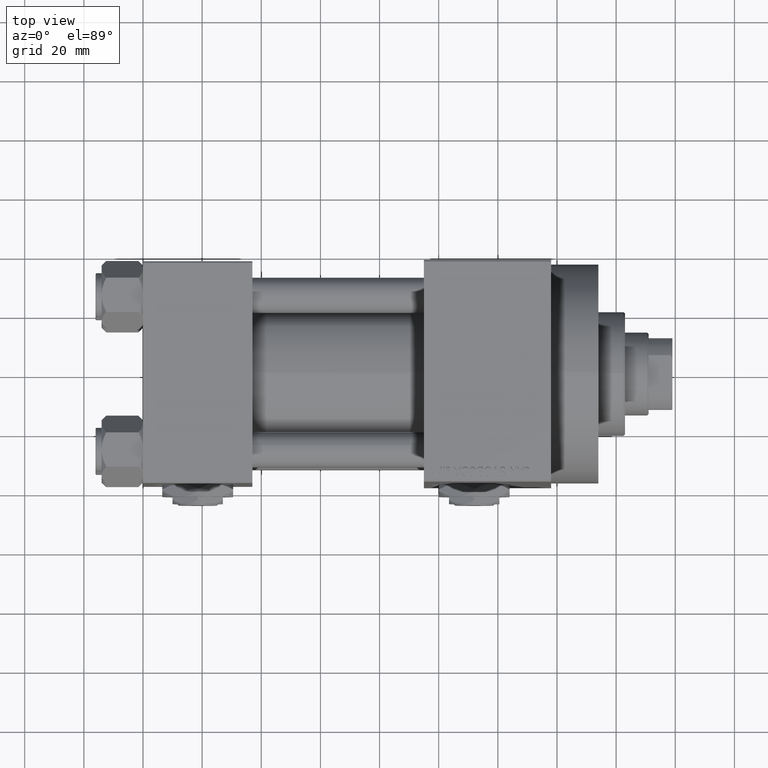
[diagram: clean part render]
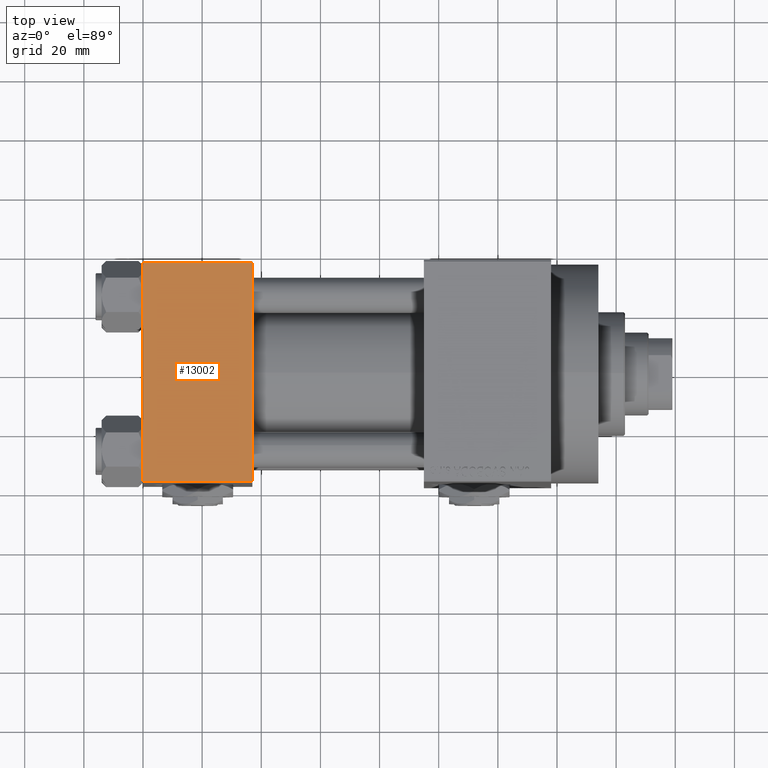
[diagram: same view with one face highlighted and labeled with its STEP entity id]
A machine part, top view. The second image highlights one B-rep face of the part: STEP entity #13002.
In plain terms, the highlighted planar face has unit normal (0, 0, -1).
Its self-contained STEP definition (entity closure, byte-faithful):
#966 = EDGE_CURVE ( 'NONE', #12385, #4499, #17951, .T. ) ;
#4499 = VERTEX_POINT ( 'NONE', #6644 ) ;
#4661 = ORIENTED_EDGE ( 'NONE', *, *, #966, .T. ) ;
#6114 = VERTEX_POINT ( 'NONE', #19658 ) ;
#6247 = DIRECTION ( 'NONE',  ( -1.000000000000000000, 0.000000000000000000, 0.000000000000000000 ) ) ;
#6343 = VECTOR ( 'NONE', #11646, 1000.000000000000000 ) ;
#6644 = CARTESIAN_POINT ( 'NONE',  ( 0.000000000000000000, -37.00000000000000711, 37.49999999999999289 ) ) ;
#7269 = LINE ( 'NONE', #37680, #48209 ) ;
#7669 = LINE ( 'NONE', #26835, #6343 ) ;
#9256 = CARTESIAN_POINT ( 'NONE',  ( 0.000000000000000000, 36.99999999999999289, 37.50000000000000000 ) ) ;
#11646 = DIRECTION ( 'NONE',  ( 0.000000000000000000, -1.000000000000000000, -9.251858538542971581E-17 ) ) ;
#12133 = DIRECTION ( 'NONE',  ( 0.000000000000000000, 1.000000000000000000, 9.251858538542971581E-17 ) ) ;
#12385 = VERTEX_POINT ( 'NONE', #9256 ) ;
#13002 = ADVANCED_FACE ( 'NONE', ( #38804 ), #19359, .F. ) ;
#13921 = EDGE_CURVE ( 'NONE', #22768, #6114, #7669, .T. ) ;
#14199 = DIRECTION ( 'NONE',  ( 0.000000000000000000, -1.000000000000000000, -9.251858538542971581E-17 ) ) ;
#17039 = ORIENTED_EDGE ( 'NONE', *, *, #31295, .T. ) ;
#17951 = LINE ( 'NONE', #44619, #40231 ) ;
#18723 = DIRECTION ( 'NONE',  ( 1.000000000000000000, 0.000000000000000000, 0.000000000000000000 ) ) ;
#19359 = PLANE ( 'NONE',  #34959 ) ;
#19621 = ORIENTED_EDGE ( 'NONE', *, *, #13921, .F. ) ;
#19658 = CARTESIAN_POINT ( 'NONE',  ( 37.00000000000000000, -37.00000000000000711, 37.49999999999999289 ) ) ;
#22562 = EDGE_CURVE ( 'NONE', #22768, #12385, #35927, .T. ) ;
#22768 = VERTEX_POINT ( 'NONE', #46591 ) ;
#26835 = CARTESIAN_POINT ( 'NONE',  ( 37.00000000000000000, 37.49999999999999289, 37.50000000000000000 ) ) ;
#28635 = ORIENTED_EDGE ( 'NONE', *, *, #22562, .T. ) ;
#31295 = EDGE_CURVE ( 'NONE', #4499, #6114, #7269, .T. ) ;
#31318 = DIRECTION ( 'NONE',  ( 0.000000000000000000, 9.251858538542971581E-17, -1.000000000000000000 ) ) ;
#34569 = CARTESIAN_POINT ( 'NONE',  ( 37.00000000000000000, 37.49999999999999289, 37.50000000000000000 ) ) ;
#34959 = AXIS2_PLACEMENT_3D ( 'NONE', #34569, #31318, #12133 ) ;
#35927 = LINE ( 'NONE', #39668, #43134 ) ;
#37680 = CARTESIAN_POINT ( 'NONE',  ( 37.00000000000000000, -37.00000000000000711, 37.49999999999999289 ) ) ;
#38804 = FACE_OUTER_BOUND ( 'NONE', #46761, .T. ) ;
#39668 = CARTESIAN_POINT ( 'NONE',  ( 0.000000000000000000, 36.99999999999999289, 37.50000000000000000 ) ) ;
#40231 = VECTOR ( 'NONE', #14199, 1000.000000000000000 ) ;
#43134 = VECTOR ( 'NONE', #6247, 1000.000000000000000 ) ;
#44619 = CARTESIAN_POINT ( 'NONE',  ( 0.000000000000000000, 37.49999999999999289, 37.50000000000000000 ) ) ;
#46591 = CARTESIAN_POINT ( 'NONE',  ( 37.00000000000000000, 36.99999999999999289, 37.50000000000000000 ) ) ;
#46761 = EDGE_LOOP ( 'NONE', ( #4661, #17039, #19621, #28635 ) ) ;
#48209 = VECTOR ( 'NONE', #18723, 1000.000000000000000 ) ;